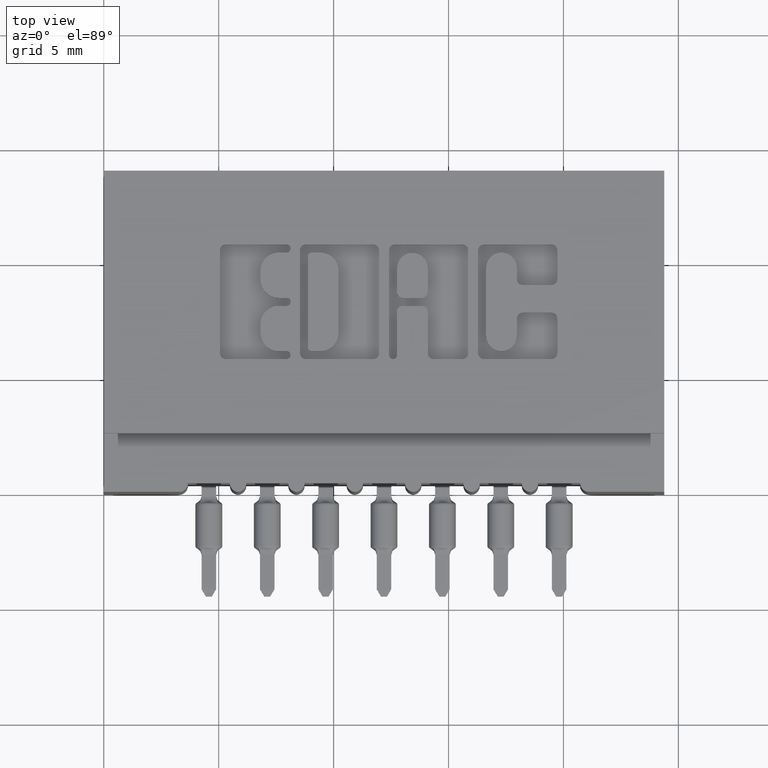
[diagram: clean part render]
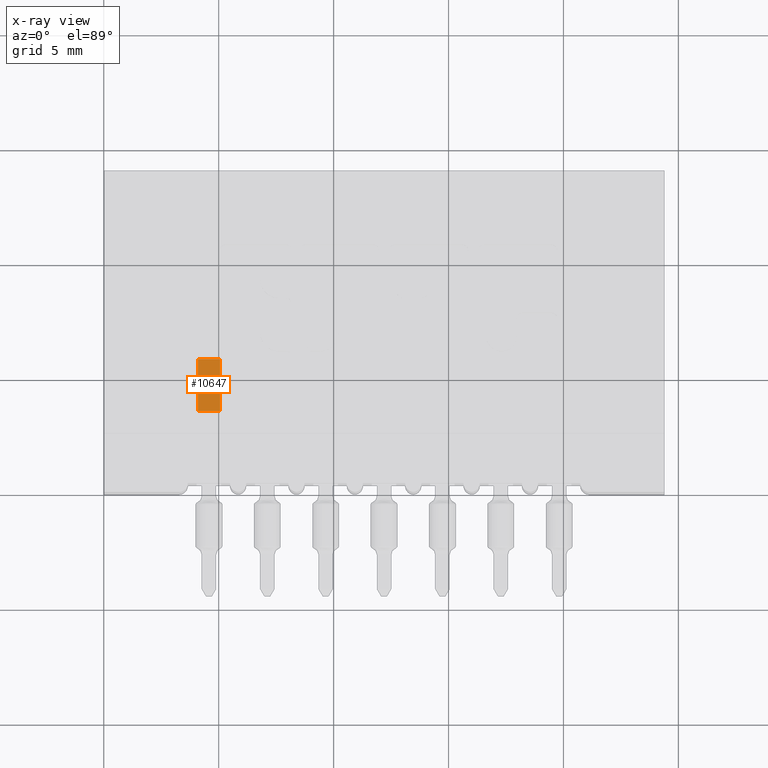
[diagram: x-ray — body ghosted, one internal face saturated and labeled with its STEP entity id]
A machine part, top view, then the same camera in x-ray: the body is ghosted and one INTERNAL B-rep face — a face not visible from any outside direction — is saturated and labeled: STEP entity #10647.
In plain terms, the highlighted planar face has unit normal (-0, 0, -1).
Its self-contained STEP definition (entity closure, byte-faithful):
#343 = EDGE_CURVE ( 'NONE', #2979, #7280, #12436, .T. ) ;
#928 = VECTOR ( 'NONE', #16269, 39.37007874015748100 ) ;
#1435 = ORIENTED_EDGE ( 'NONE', *, *, #12284, .T. ) ;
#1875 = EDGE_LOOP ( 'NONE', ( #7150, #9353, #4471, #1435 ) ) ;
#2161 = AXIS2_PLACEMENT_3D ( 'NONE', #16154, #3601, #12437 ) ;
#2335 = PLANE ( 'NONE',  #2161 ) ;
#2626 = CARTESIAN_POINT ( 'NONE',  ( 0.01899999999999998900, -0.0004999999999991819800, -0.1562500000000000000 ) ) ;
#2841 = EDGE_CURVE ( 'NONE', #8645, #7280, #9399, .T. ) ;
#2979 = VERTEX_POINT ( 'NONE', #2626 ) ;
#3361 = CARTESIAN_POINT ( 'NONE',  ( 0.01899999999999998900, -0.0004999999999997283100, 0.0000000000000000000 ) ) ;
#3601 = DIRECTION ( 'NONE',  ( -1.627025617018337200E-030, -1.000000000000000000, 3.595919239949319200E-060 ) ) ;
#3811 = VERTEX_POINT ( 'NONE', #9361 ) ;
#3874 = CARTESIAN_POINT ( 'NONE',  ( -0.01899999999999998900, -0.0004999999999991819800, -0.1562500000000000000 ) ) ;
#4471 = ORIENTED_EDGE ( 'NONE', *, *, #13427, .F. ) ;
#4640 = LINE ( 'NONE', #3874, #7603 ) ;
#5589 = CARTESIAN_POINT ( 'NONE',  ( -0.01899999999999998900, -0.0004999999999997283100, -0.2451234683868643800 ) ) ;
#7150 = ORIENTED_EDGE ( 'NONE', *, *, #343, .T. ) ;
#7280 = VERTEX_POINT ( 'NONE', #10250 ) ;
#7307 = CARTESIAN_POINT ( 'NONE',  ( -0.01899999999999998900, -0.0004999999999997283100, -0.2451234683868643800 ) ) ;
#7603 = VECTOR ( 'NONE', #10217, 39.37007874015748100 ) ;
#7650 = LINE ( 'NONE', #15024, #928 ) ;
#8563 = DIRECTION ( 'NONE',  ( 1.000000000000000000, 1.627025617018337200E-030, 2.210118391706176700E-030 ) ) ;
#8645 = VERTEX_POINT ( 'NONE', #5589 ) ;
#9353 = ORIENTED_EDGE ( 'NONE', *, *, #2841, .F. ) ;
#9361 = CARTESIAN_POINT ( 'NONE',  ( -0.01899999999999998900, -0.0004999999999991819800, -0.1562500000000000000 ) ) ;
#9399 = LINE ( 'NONE', #7307, #16081 ) ;
#10217 = DIRECTION ( 'NONE',  ( 1.000000000000000000, 1.627025617018337200E-030, 2.210118391706176700E-030 ) ) ;
#10250 = CARTESIAN_POINT ( 'NONE',  ( 0.01899999999999998900, -0.0004999999999997283100, -0.2451234683868643800 ) ) ;
#10647 = ADVANCED_FACE ( 'NONE', ( #16118 ), #2335, .F. ) ;
#12201 = DIRECTION ( 'NONE',  ( -2.210118391706178100E-030, 0.0000000000000000000, -1.000000000000000000 ) ) ;
#12284 = EDGE_CURVE ( 'NONE', #3811, #2979, #4640, .T. ) ;
#12436 = LINE ( 'NONE', #3361, #16152 ) ;
#12437 = DIRECTION ( 'NONE',  ( -2.210118391706178100E-030, 0.0000000000000000000, -1.000000000000000000 ) ) ;
#13427 = EDGE_CURVE ( 'NONE', #3811, #8645, #7650, .T. ) ;
#15024 = CARTESIAN_POINT ( 'NONE',  ( -0.01899999999999998900, -0.0005000000000000015300, 0.0000000000000000000 ) ) ;
#16081 = VECTOR ( 'NONE', #8563, 39.37007874015748100 ) ;
#16118 = FACE_OUTER_BOUND ( 'NONE', #1875, .T. ) ;
#16152 = VECTOR ( 'NONE', #12201, 39.37007874015748100 ) ;
#16154 = CARTESIAN_POINT ( 'NONE',  ( -0.01899999999999998900, -0.0005000000000000015300, 0.0000000000000000000 ) ) ;
#16269 = DIRECTION ( 'NONE',  ( -2.210118391706178100E-030, 0.0000000000000000000, -1.000000000000000000 ) ) ;